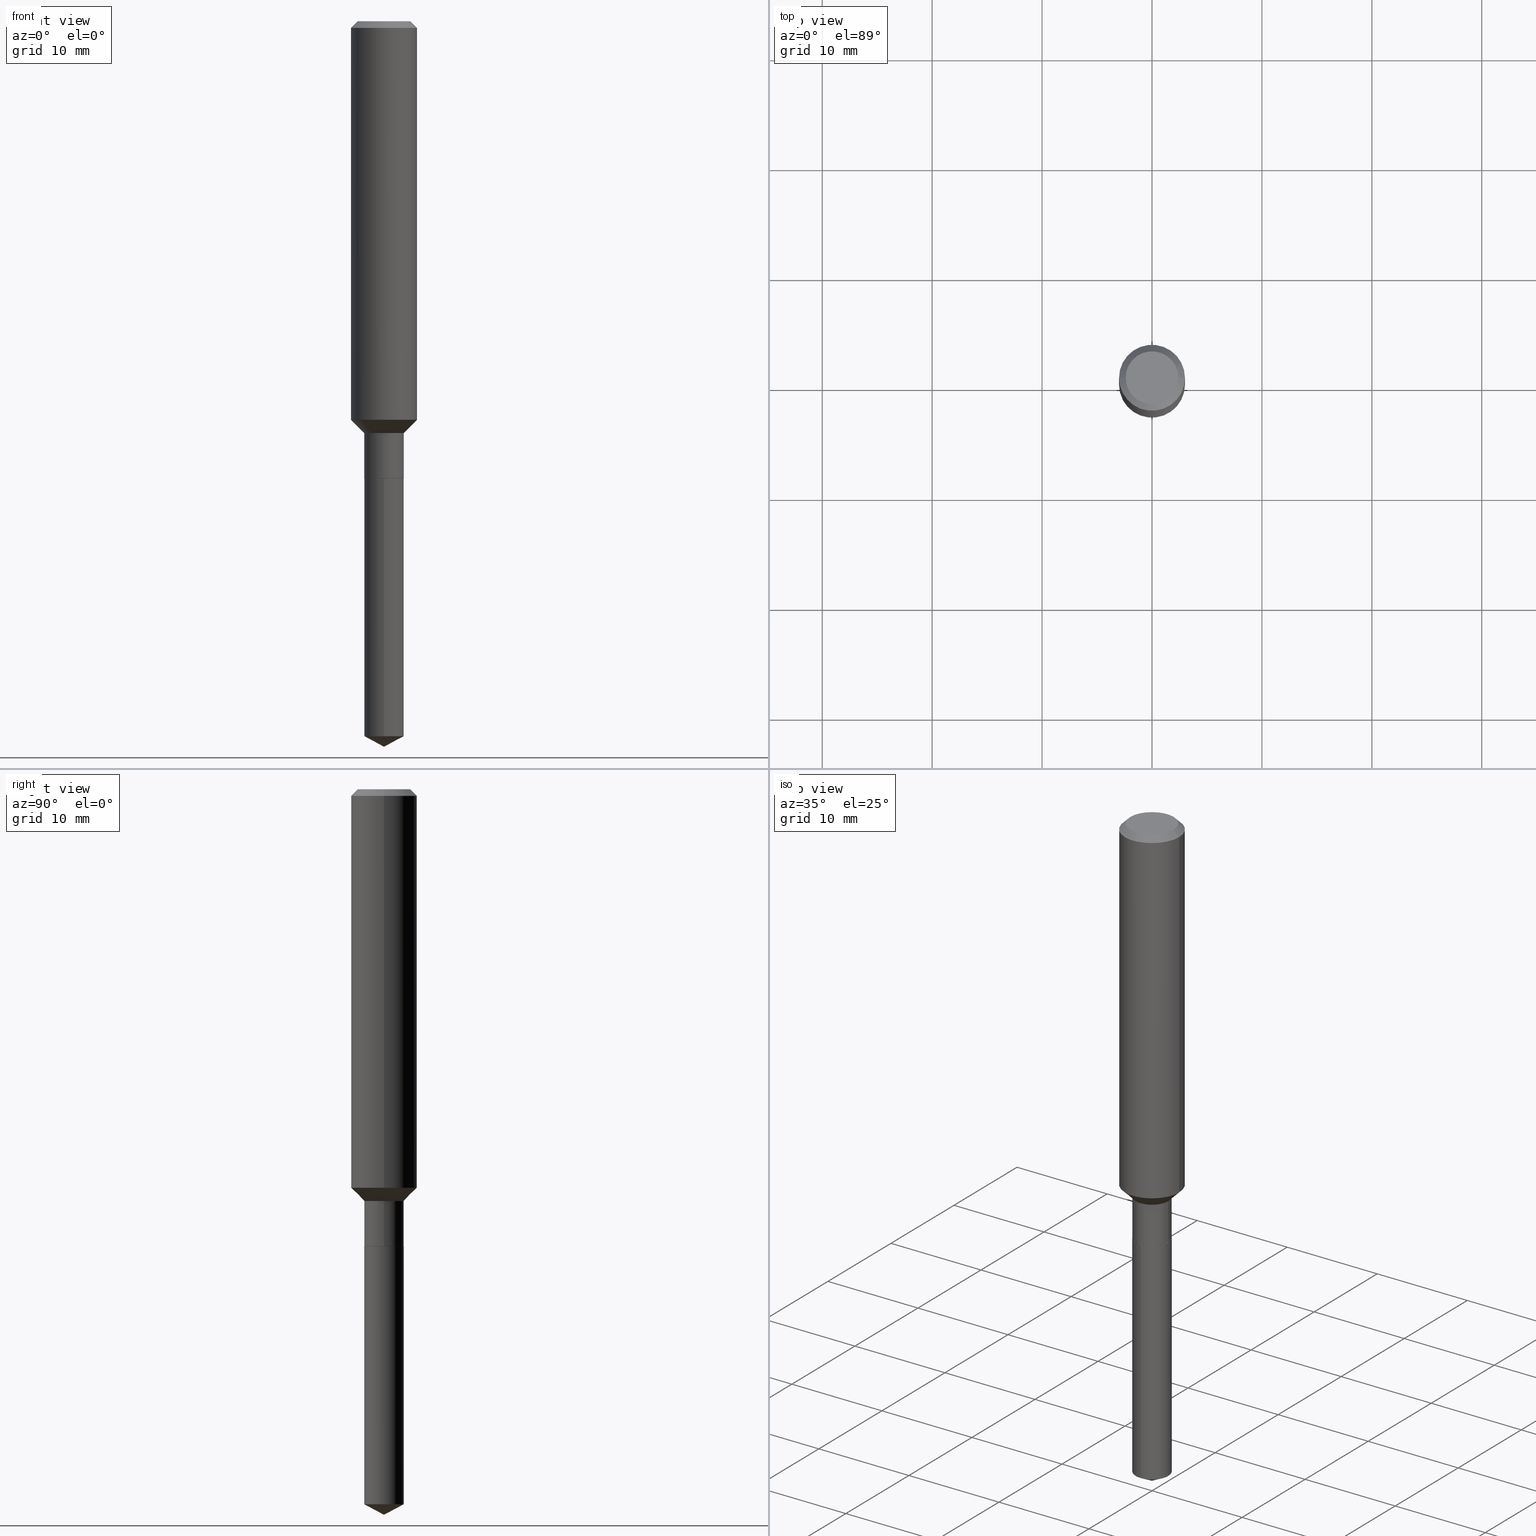
[diagram: canonical four-view strip — front | top / right | iso, engineering-drawing reading convention]
A machine part, canonical four-view strip (front | top / right | iso — engineering-drawing reading convention). The complete STEP part file that produces these views, byte-faithful:
ISO-10303-21;
HEADER;
FILE_DESCRIPTION (( 'STEP AP203' ),
    '1' );
FILE_NAME ('65006.STEP',
    '2024-04-24T19:44:00',
    ( '' ),
    ( '' ),
    'SwSTEP 2.0',
    'SolidWorks 2023',
    '' );
FILE_SCHEMA (( 'CONFIG_CONTROL_DESIGN' ));
ENDSEC;

DATA;
#1 = CARTESIAN_POINT ( 'NONE',  ( 0.07084999999999998244, -5.643630436106058407E-15, -1.474699999999999900 ) ) ;
#2 = ORIENTED_EDGE ( 'NONE', *, *, #333, .F. ) ;
#3 = ADVANCED_FACE ( 'NONE', ( #245 ), #367, .T. ) ;
#4 = AXIS2_PLACEMENT_3D ( 'NONE', #435, #437, #239 ) ;
#5 = CARTESIAN_POINT ( 'NONE',  ( 0.07084999999999998244, -6.210996153668069944E-15, -1.637199999999999989 ) ) ;
#6 = EDGE_CURVE ( 'NONE', #293, #358, #214, .T. ) ;
#7 = ORIENTED_EDGE ( 'NONE', *, *, #390, .T. ) ;
#8 = CC_DESIGN_PERSON_AND_ORGANIZATION_ASSIGNMENT ( #343, #21, ( #285 ) ) ;
#9 = CARTESIAN_POINT ( 'NONE',  ( 4.716267017698007905E-46, -6.733579360998555036E-32, -1.928573779297252010E-17 ) ) ;
#10 = CARTESIAN_POINT ( 'NONE',  ( -0.09447999999999998066, 7.009847083995354710E-16, -1.928573779297727792E-17 ) ) ;
#11 = ORIENTED_EDGE ( 'NONE', *, *, #255, .F. ) ;
#12 = VECTOR ( 'NONE', #304, 39.37007874015748143 ) ;
#13 = VECTOR ( 'NONE', #172, 39.37007874015748143 ) ;
#14 = CALENDAR_DATE ( 2024, 24, 4 ) ;
#15 = EDGE_CURVE ( 'NONE', #116, #370, #164, .T. ) ;
#16 = FACE_OUTER_BOUND ( 'NONE', #170, .T. ) ;
#17 = DIRECTION ( 'NONE',  ( 1.000000000000000000, 0.000000000000000000, 0.000000000000000000 ) ) ;
#18 = CARTESIAN_POINT ( 'NONE',  ( 0.000000000000000000, 0.000000000000000000, 0.000000000000000000 ) ) ;
#19 = PERSON_AND_ORGANIZATION ( #378, #317 ) ;
#20 = CARTESIAN_POINT ( 'NONE',  ( 4.004944263889397849E-29, -5.717998988623418403E-15, -1.637699999999999934 ) ) ;
#21 = PERSON_AND_ORGANIZATION_ROLE ( 'classification_officer' ) ;
#22 = AXIS2_PLACEMENT_3D ( 'NONE', #372, #46, #452 ) ;
#23 = CARTESIAN_POINT ( 'NONE',  ( 5.776197320209328408E-31, -8.246878922347560526E-17, -0.02362000000000014435 ) ) ;
#24 = DIRECTION ( 'NONE',  ( -6.982962677686266711E-15, -1.000000000000000000, 0.000000000000000000 ) ) ;
#25 = PRODUCT_RELATED_PRODUCT_CATEGORY ( 'detail', '', ( #267 ) ) ;
#26 = CARTESIAN_POINT ( 'NONE',  ( 0.000000000000000000, 0.000000000000000000, 0.000000000000000000 ) ) ;
#27 = DIRECTION ( 'NONE',  ( 1.000000000000000000, -6.982962677686270655E-15, 0.000000000000000000 ) ) ;
#28 = AXIS2_PLACEMENT_3D ( 'NONE', #132, #350, #272 ) ;
#29 = EDGE_LOOP ( 'NONE', ( #327, #377 ) ) ;
#30 = CARTESIAN_POINT ( 'NONE',  ( 0.07034999999999999587, -6.209250412998647651E-15, -1.637699999999999934 ) ) ;
#31 = CARTESIAN_POINT ( 'NONE',  ( 0.1180999999999999966, -8.926936027602933910E-16, -0.02362000000000014435 ) ) ;
#32 = ORIENTED_EDGE ( 'NONE', *, *, #351, .F. ) ;
#33 = CARTESIAN_POINT ( 'NONE',  ( -4.947429057140318261E-16, -0.07085000000000571396, -1.637699999999999489 ) ) ;
#34 = LOCAL_TIME ( 15, 44, 0.000000000000000000, #299 ) ;
#35 = EDGE_CURVE ( 'NONE', #373, #275, #216, .T. ) ;
#36 = DIRECTION ( 'NONE',  ( -2.445468806185136597E-29, 3.491481338843145583E-15, 1.000000000000000000 ) ) ;
#37 = EDGE_CURVE ( 'NONE', #253, #355, #335, .T. ) ;
#38 = CYLINDRICAL_SURFACE ( 'NONE', #337, 0.07084999999999999631 ) ;
#39 = PRODUCT_DEFINITION ( 'UNKNOWN', '', #459, #306 ) ;
#40 = CARTESIAN_POINT ( 'NONE',  ( 0.07034999999999999587, -6.209250412998647651E-15, -1.637699999999999934 ) ) ;
#41 = ADVANCED_FACE ( 'NONE', ( #298 ), #391, .F. ) ;
#42 = AXIS2_PLACEMENT_3D ( 'NONE', #482, #443, #399 ) ;
#43 = DIRECTION ( 'NONE',  ( 1.000000000000000000, -6.982962677686266711E-15, 0.000000000000000000 ) ) ;
#44 = ADVANCED_FACE ( 'NONE', ( #192 ), #396, .T. ) ;
#45 = EDGE_LOOP ( 'NONE', ( #488, #72, #218, #314 ) ) ;
#46 = DIRECTION ( 'NONE',  ( -2.445468806185136597E-29, 3.491481338843145583E-15, 1.000000000000000000 ) ) ;
#47 = ORIENTED_EDGE ( 'NONE', *, *, #359, .F. ) ;
#48 = APPROVAL_DATE_TIME ( #223, #439 ) ;
#49 = ORIENTED_EDGE ( 'NONE', *, *, #15, .F. ) ;
#50 = VECTOR ( 'NONE', #329, 39.37007874015748143 ) ;
#51 = COORDINATED_UNIVERSAL_TIME_OFFSET ( 5, 0, .BEHIND. ) ;
#52 = FACE_OUTER_BOUND ( 'NONE', #240, .T. ) ;
#53 = ADVANCED_FACE ( 'NONE', ( #386 ), #340, .T. ) ;
#54 = LINE ( 'NONE', #226, #441 ) ;
#55 = PERSON_AND_ORGANIZATION_ROLE ( 'design_supplier' ) ;
#56 = DIRECTION ( 'NONE',  ( -2.445468806185136597E-29, 3.491481338843145583E-15, 1.000000000000000000 ) ) ;
#57 = VECTOR ( 'NONE', #382, 39.37007874015748143 ) ;
#58 = CIRCLE ( 'NONE', #139, 0.09447999999999998066 ) ;
#59 = EDGE_CURVE ( 'NONE', #460, #275, #462, .T. ) ;
#60 = CYLINDRICAL_SURFACE ( 'NONE', #251, 0.07084999999999998244 ) ;
#61 = DIRECTION ( 'NONE',  ( -2.439491125561430535E-29, 3.500041717724744558E-15, 1.000000000000000000 ) ) ;
#62 = CARTESIAN_POINT ( 'NONE',  ( 3.606332848481220799E-29, -5.148887530391986941E-15, -1.474699999999999900 ) ) ;
#63 = EDGE_LOOP ( 'NONE', ( #416, #418, #2, #451 ) ) ;
#64 = CONICAL_SURFACE ( 'NONE', #129, 0.07034999999999999587, 0.7853981633975420928 ) ;
#65 = CARTESIAN_POINT ( 'NONE',  ( -0.1180999999999999966, 7.422191030112725094E-16, -0.02362000000000014435 ) ) ;
#66 = VERTEX_POINT ( 'NONE', #231 ) ;
#67 = FACE_OUTER_BOUND ( 'NONE', #29, .T. ) ;
#68 = FACE_OUTER_BOUND ( 'NONE', #287, .T. ) ;
#69 = CC_DESIGN_PERSON_AND_ORGANIZATION_ASSIGNMENT ( #19, #160, ( #39 ) ) ;
#70 = LENGTH_MEASURE_WITH_UNIT ( LENGTH_MEASURE( 0.02539999999999999897 ), #248 );
#71 = CONICAL_SURFACE ( 'NONE', #123, 0.1180999999999999966, 0.7853981633974459475 ) ;
#72 = ORIENTED_EDGE ( 'NONE', *, *, #447, .T. ) ;
#73 = ORIENTED_EDGE ( 'NONE', *, *, #310, .F. ) ;
#74 = DIRECTION ( 'NONE',  ( 1.000000000000000000, -6.982962677686265133E-15, 0.000000000000000000 ) ) ;
#75 = ORIENTED_EDGE ( 'NONE', *, *, #37, .F. ) ;
#76 = CARTESIAN_POINT ( 'NONE',  ( 4.004944263889397849E-29, -5.717998988623418403E-15, -1.637699999999999934 ) ) ;
#77 = DIRECTION ( 'NONE',  ( 1.000000000000000000, -6.982962677686266711E-15, 4.876176775795936353E-29 ) ) ;
#78 =( NAMED_UNIT ( * ) PLANE_ANGLE_UNIT ( ) SI_UNIT ( $, .RADIAN. ) );
#79 = ORIENTED_EDGE ( 'NONE', *, *, #393, .F. ) ;
#80 = CIRCLE ( 'NONE', #217, 0.07034999999999999587 ) ;
#81 = APPROVAL_PERSON_ORGANIZATION ( #252, #342, #124 ) ;
#82 = DIRECTION ( 'NONE',  ( -2.445468806185136597E-29, 3.491481338843145583E-15, 1.000000000000000000 ) ) ;
#83 = VERTEX_POINT ( 'NONE', #472 ) ;
#84 = DATE_AND_TIME ( #385, #486 ) ;
#85 = ORIENTED_EDGE ( 'NONE', *, *, #481, .F. ) ;
#86 = PERSON_AND_ORGANIZATION ( #378, #317 ) ;
#87 = DIRECTION ( 'NONE',  ( -2.445468806185136597E-29, 3.491481338843145583E-15, 1.000000000000000000 ) ) ;
#88 = CIRCLE ( 'NONE', #22, 0.1181000000000001632 ) ;
#89 = PERSON_AND_ORGANIZATION_ROLE ( 'design_owner' ) ;
#90 = DIRECTION ( 'NONE',  ( -6.982962677686266711E-15, -1.000000000000000000, 0.000000000000000000 ) ) ;
#91 = ADVANCED_FACE ( 'NONE', ( #16 ), #64, .T. ) ;
#92 = PERSON_AND_ORGANIZATION_ROLE ( 'creator' ) ;
#93 = DIRECTION ( 'NONE',  ( -0.7071067811866138531, 7.493145998870593974E-15, 0.7071067811864811814 ) ) ;
#94 = EDGE_CURVE ( 'NONE', #66, #185, #276, .T. ) ;
#95 = MANIFOLD_SOLID_BREP ( 'Body-Move/Copy2[1]', #182 ) ;
#96 = CARTESIAN_POINT ( 'NONE',  ( -0.07034999999999999587, -5.215482946842077343E-15, -1.637699999999999934 ) ) ;
#97 = AXIS2_PLACEMENT_3D ( 'NONE', #345, #228, #263 ) ;
#98 = AXIS2_PLACEMENT_3D ( 'NONE', #23, #56, #159 ) ;
#99 = AXIS2_PLACEMENT_3D ( 'NONE', #483, #278, #27 ) ;
#100 = DIRECTION ( 'NONE',  ( -1.000000000000000000, 6.982962677686266711E-15, 0.000000000000000000 ) ) ;
#101 = CARTESIAN_POINT ( 'NONE',  ( 0.1181000000000001632, -5.808602929366397200E-15, -1.427449999999999886 ) ) ;
#102 = ORIENTED_EDGE ( 'NONE', *, *, #326, .F. ) ;
#103 = EDGE_CURVE ( 'NONE', #358, #370, #174, .T. ) ;
#104 = LINE ( 'NONE', #281, #13 ) ;
#105 = CARTESIAN_POINT ( 'NONE',  ( 4.003721529486305608E-29, -5.716253247953998478E-15, -1.637199999999999989 ) ) ;
#106 = DIRECTION ( 'NONE',  ( -6.982962677686265133E-15, -1.000000000000000000, 3.855819327684210983E-15 ) ) ;
#107 = ORIENTED_EDGE ( 'NONE', *, *, #15, .T. ) ;
#108 = CARTESIAN_POINT ( 'NONE',  ( 4.004944263889397849E-29, -5.717998988623418403E-15, -1.637699999999999934 ) ) ;
#109 = DIRECTION ( 'NONE',  ( -2.445468806185136597E-29, 3.491481338843145583E-15, 1.000000000000000000 ) ) ;
#110 = AXIS2_PLACEMENT_3D ( 'NONE', #207, #318, #43 ) ;
#111 = ORIENTED_EDGE ( 'NONE', *, *, #323, .T. ) ;
#112 = DIRECTION ( 'NONE',  ( -2.445468806185136597E-29, 3.491481338843145583E-15, 1.000000000000000000 ) ) ;
#113 = ORIENTED_EDGE ( 'NONE', *, *, #131, .F. ) ;
#114 = DIRECTION ( 'NONE',  ( 6.273719981627788953E-15, 0.8829475928589329836, 0.4694715627858795370 ) ) ;
#115 = DIRECTION ( 'NONE',  ( 1.000000000000000000, -6.982962677686269866E-15, 0.000000000000000000 ) ) ;
#116 = VERTEX_POINT ( 'NONE', #96 ) ;
#117 = LOCAL_TIME ( 15, 44, 0.000000000000000000, #295 ) ;
#118 = CARTESIAN_POINT ( 'NONE',  ( 4.004944263889397849E-29, -5.717998988623418403E-15, -1.637699999999999934 ) ) ;
#119 = PERSON_AND_ORGANIZATION ( #378, #317 ) ;
#120 = DIRECTION ( 'NONE',  ( -2.445468806185136597E-29, 3.491481338843145583E-15, 1.000000000000000000 ) ) ;
#121 = SECURITY_CLASSIFICATION_LEVEL ( 'unclassified' ) ;
#122 = DIRECTION ( 'NONE',  ( -6.982962677686265133E-15, -1.000000000000000000, 3.541896320645499732E-15 ) ) ;
#123 = AXIS2_PLACEMENT_3D ( 'NONE', #181, #246, #369 ) ;
#124 = APPROVAL_ROLE ( '' ) ;
#125 = CARTESIAN_POINT ( 'NONE',  ( 4.003721529486305608E-29, -5.716253247953998478E-15, -1.637199999999999989 ) ) ;
#126 = CALENDAR_DATE ( 2024, 24, 4 ) ;
#127 = CARTESIAN_POINT ( 'NONE',  ( 4.004944263889397849E-29, -5.717998988623418403E-15, -1.637699999999999934 ) ) ;
#128 = CYLINDRICAL_SURFACE ( 'NONE', #203, 0.07084999999999999631 ) ;
#129 = AXIS2_PLACEMENT_3D ( 'NONE', #127, #300, #261 ) ;
#130 = CIRCLE ( 'NONE', #225, 0.07084999999999999631 ) ;
#131 = EDGE_CURVE ( 'NONE', #361, #185, #54, .T. ) ;
#132 = CARTESIAN_POINT ( 'NONE',  ( 4.716267017698007905E-46, -6.733579360998555036E-32, -1.928573779297252010E-17 ) ) ;
#133 = EDGE_LOOP ( 'NONE', ( #273, #201, #180, #249 ) ) ;
#134 = LINE ( 'NONE', #444, #308 ) ;
#135 = EDGE_LOOP ( 'NONE', ( #85, #438, #344 ) ) ;
#136 = ADVANCED_FACE ( 'NONE', ( #341 ), #346, .T. ) ;
#137 = DIRECTION ( 'NONE',  ( 1.000000000000000000, -6.982962677686265133E-15, 0.000000000000000000 ) ) ;
#138 = PLANE ( 'NONE',  #42 ) ;
#139 = AXIS2_PLACEMENT_3D ( 'NONE', #9, #82, #153 ) ;
#140 = DIRECTION ( 'NONE',  ( -2.445468806185136597E-29, 3.491481338843145583E-15, 1.000000000000000000 ) ) ;
#141 = CARTESIAN_POINT ( 'NONE',  ( 3.606332848481220799E-29, -5.148887530391986941E-15, -1.474699999999999900 ) ) ;
#142 = ORIENTED_EDGE ( 'NONE', *, *, #212, .T. ) ;
#143 = ADVANCED_FACE ( 'NONE', ( #268 ), #476, .T. ) ;
#144 = EDGE_LOOP ( 'NONE', ( #73, #154 ) ) ;
#145 = ORIENTED_EDGE ( 'NONE', *, *, #59, .F. ) ;
#146 = FACE_OUTER_BOUND ( 'NONE', #368, .T. ) ;
#147 = VECTOR ( 'NONE', #93, 39.37007874015748143 ) ;
#148 = CIRCLE ( 'NONE', #4, 0.07034999999999999587 ) ;
#149 = ORIENTED_EDGE ( 'NONE', *, *, #359, .T. ) ;
#150 = LINE ( 'NONE', #332, #468 ) ;
#151 = EDGE_CURVE ( 'NONE', #185, #66, #195, .T. ) ;
#152 = DIRECTION ( 'NONE',  ( 0.7071067811866138531, -2.468850131082952047E-15, 0.7071067811864811814 ) ) ;
#153 = DIRECTION ( 'NONE',  ( 1.000000000000000000, -6.982962677686267499E-15, 4.875432709231658792E-29 ) ) ;
#154 = ORIENTED_EDGE ( 'NONE', *, *, #375, .F. ) ;
#155 = VECTOR ( 'NONE', #169, 39.37007874015748143 ) ;
#156 = APPROVAL_PERSON_ORGANIZATION ( #470, #400, #419 ) ;
#157 = DATE_AND_TIME ( #163, #449 ) ;
#158 = DIRECTION ( 'NONE',  ( -2.439491125561430535E-29, 3.500041717724744558E-15, 1.000000000000000000 ) ) ;
#159 = DIRECTION ( 'NONE',  ( 1.000000000000000000, -6.982962677686266711E-15, 0.000000000000000000 ) ) ;
#160 = PERSON_AND_ORGANIZATION_ROLE ( 'creator' ) ;
#161 = CARTESIAN_POINT ( 'NONE',  ( 5.776197320209328408E-31, -8.246878922347560526E-17, -0.02362000000000014435 ) ) ;
#162 = CONICAL_SURFACE ( 'NONE', #388, 0.07084999999999998244, 0.7853981633974487231 ) ;
#163 = CALENDAR_DATE ( 2024, 24, 4 ) ;
#164 = LINE ( 'NONE', #469, #147 ) ;
#165 = LINE ( 'NONE', #305, #57 ) ;
#166 = DIRECTION ( 'NONE',  ( 1.000000000000000000, -6.982962677686266711E-15, 4.876176775795935232E-29 ) ) ;
#167 = EDGE_LOOP ( 'NONE', ( #236, #149, #75, #283 ) ) ;
#168 = AXIS2_PLACEMENT_3D ( 'NONE', #401, #362, #204 ) ;
#169 = DIRECTION ( 'NONE',  ( 0.7071067811865459074, -7.319954787623251312E-15, -0.7071067811865492381 ) ) ;
#170 = EDGE_LOOP ( 'NONE', ( #297, #107, #480, #242 ) ) ;
#171 = ADVANCED_FACE ( 'NONE', ( #387 ), #60, .T. ) ;
#172 = DIRECTION ( 'NONE',  ( 0.7071067811865477948, -2.468850131082259822E-15, 0.7071067811865472397 ) ) ;
#173 = CARTESIAN_POINT ( 'NONE',  ( 3.606332848481220799E-29, -5.148887530391986941E-15, -1.474699999999999900 ) ) ;
#174 = CIRCLE ( 'NONE', #456, 0.07084999999999998244 ) ;
#175 = LINE ( 'NONE', #360, #324 ) ;
#176 = AXIS2_PLACEMENT_3D ( 'NONE', #339, #193, #17 ) ;
#177 =( NAMED_UNIT ( * ) SI_UNIT ( $, .STERADIAN. ) SOLID_ANGLE_UNIT ( ) );
#178 = EDGE_CURVE ( 'NONE', #358, #379, #165, .T. ) ;
#179 = CARTESIAN_POINT ( 'NONE',  ( 6.338773740658819888E-29, -9.094508399335977746E-15, -2.598399999999999821 ) ) ;
#180 = ORIENTED_EDGE ( 'NONE', *, *, #178, .T. ) ;
#181 = CARTESIAN_POINT ( 'NONE',  ( 5.776197320209328408E-31, -8.246878922347560526E-17, -0.02362000000000014435 ) ) ;
#182 = CLOSED_SHELL ( 'NONE', ( #464, #44, #136, #186, #473 ) ) ;
#183 = FACE_OUTER_BOUND ( 'NONE', #319, .T. ) ;
#184 = PLANE ( 'NONE',  #478 ) ;
#185 = VERTEX_POINT ( 'NONE', #474 ) ;
#186 = ADVANCED_FACE ( 'NONE', ( #52 ), #128, .T. ) ;
#187 = MECHANICAL_CONTEXT ( 'NONE', #303, 'mechanical' ) ;
#188 = DIRECTION ( 'NONE',  ( -6.982962677686265133E-15, -1.000000000000000000, 3.541896320645499732E-15 ) ) ;
#189 = AXIS2_PLACEMENT_3D ( 'NONE', #26, #270, #166 ) ;
#190 = DIRECTION ( 'NONE',  ( 1.000000000000000000, -6.982962677686265922E-15, 4.876176775795935793E-29 ) ) ;
#191 = APPROVAL_ROLE ( '' ) ;
#192 = FACE_OUTER_BOUND ( 'NONE', #208, .T. ) ;
#193 = DIRECTION ( 'NONE',  ( 0.000000000000000000, 0.000000000000000000, 1.000000000000000000 ) ) ;
#194 = DIRECTION ( 'NONE',  ( -2.438088387897960049E-29, 3.491481338843145188E-15, 1.000000000000000000 ) ) ;
#195 = CIRCLE ( 'NONE', #202, 0.07084999999999999631 ) ;
#196 = CARTESIAN_POINT ( 'NONE',  ( 0.000000000000000000, 0.000000000000000000, 0.000000000000000000 ) ) ;
#197 = EDGE_CURVE ( 'NONE', #370, #358, #292, .T. ) ;
#198 = PRODUCT_DEFINITION_SHAPE ( 'NONE', 'NONE',  #39 ) ;
#199 = DIRECTION ( 'NONE',  ( -2.439491125561430535E-29, 3.500041717724744558E-15, 1.000000000000000000 ) ) ;
#200 = FACE_OUTER_BOUND ( 'NONE', #45, .T. ) ;
#201 = ORIENTED_EDGE ( 'NONE', *, *, #197, .T. ) ;
#202 = AXIS2_PLACEMENT_3D ( 'NONE', #338, #429, #24 ) ;
#203 = AXIS2_PLACEMENT_3D ( 'NONE', #108, #479, #106 ) ;
#204 = DIRECTION ( 'NONE',  ( 1.000000000000000000, -6.982962677686265133E-15, 0.000000000000000000 ) ) ;
#205 = ORIENTED_EDGE ( 'NONE', *, *, #375, .T. ) ;
#206 = LINE ( 'NONE', #241, #269 ) ;
#207 = CARTESIAN_POINT ( 'NONE',  ( 5.776197320209328408E-31, -8.246878922347560526E-17, -0.02362000000000014435 ) ) ;
#208 = EDGE_LOOP ( 'NONE', ( #113, #222, #376 ) ) ;
#209 = LOCAL_TIME ( 15, 44, 0.000000000000000000, #51 ) ;
#210 =( CONVERSION_BASED_UNIT ( 'INCH', #70 ) LENGTH_UNIT ( ) NAMED_UNIT ( #409 ) );
#211 = ORIENTED_EDGE ( 'NONE', *, *, #258, .F. ) ;
#212 = EDGE_CURVE ( 'NONE', #355, #253, #130, .T. ) ;
#213 = DIRECTION ( 'NONE',  ( 6.982962677686265922E-15, 1.000000000000000000, -3.500041717724744558E-15 ) ) ;
#214 = LINE ( 'NONE', #40, #291 ) ;
#215 = CARTESIAN_POINT ( 'NONE',  ( 4.004944263889397849E-29, -5.717998988623418403E-15, -1.637699999999999934 ) ) ;
#216 = CIRCLE ( 'NONE', #98, 0.1180999999999999966 ) ;
#217 = AXIS2_PLACEMENT_3D ( 'NONE', #405, #374, #282 ) ;
#218 = ORIENTED_EDGE ( 'NONE', *, *, #331, .F. ) ;
#219 = DIRECTION ( 'NONE',  ( -6.982962677686265133E-15, -1.000000000000000000, 3.855819327684210983E-15 ) ) ;
#220 = ORIENTED_EDGE ( 'NONE', *, *, #351, .T. ) ;
#221 = APPROVAL_STATUS ( 'not_yet_approved' ) ;
#222 = ORIENTED_EDGE ( 'NONE', *, *, #481, .T. ) ;
#223 = DATE_AND_TIME ( #336, #209 ) ;
#224 = DIRECTION ( 'NONE',  ( 1.000000000000000000, -6.982962677686266711E-15, 4.876176775795936353E-29 ) ) ;
#225 = AXIS2_PLACEMENT_3D ( 'NONE', #477, #61, #311 ) ;
#226 = CARTESIAN_POINT ( 'NONE',  ( 6.338773740658819888E-29, -9.094508399335977746E-15, -2.598399999999999821 ) ) ;
#227 = APPLICATION_PROTOCOL_DEFINITION ( 'international standard', 'config_control_design', 1994, #303 ) ;
#228 = DIRECTION ( 'NONE',  ( -2.439491125561430535E-29, 3.500041717724744558E-15, 1.000000000000000000 ) ) ;
#229 = CARTESIAN_POINT ( 'NONE',  ( -8.969439431105265789E-28, 1.287164289538176706E-13, 36.77167874015748339 ) ) ;
#230 = CC_DESIGN_APPROVAL ( #439, ( #39 ) ) ;
#231 = CARTESIAN_POINT ( 'NONE',  ( 5.034195282860934727E-16, 0.07084999999999105902, -2.560728386766784936 ) ) ;
#232 = LINE ( 'NONE', #31, #155 ) ;
#233 = EDGE_CURVE ( 'NONE', #379, #320, #104, .T. ) ;
#234 = ORIENTED_EDGE ( 'NONE', *, *, #390, .F. ) ;
#235 = FACE_OUTER_BOUND ( 'NONE', #63, .T. ) ;
#236 = ORIENTED_EDGE ( 'NONE', *, *, #151, .T. ) ;
#237 = AXIS2_PLACEMENT_3D ( 'NONE', #408, #36, #77 ) ;
#238 = DIRECTION ( 'NONE',  ( -0.7071067811865459074, 2.468850131082239706E-15, -0.7071067811865492381 ) ) ;
#239 = DIRECTION ( 'NONE',  ( 1.000000000000000000, -6.982962677686269866E-15, 0.000000000000000000 ) ) ;
#240 = EDGE_LOOP ( 'NONE', ( #47, #398, #485, #316 ) ) ;
#241 = CARTESIAN_POINT ( 'NONE',  ( -4.947429057140318261E-16, -0.07085000000000571396, -1.637699999999999489 ) ) ;
#242 = ORIENTED_EDGE ( 'NONE', *, *, #6, .F. ) ;
#243 = AXIS2_PLACEMENT_3D ( 'NONE', #161, #266, #100 ) ;
#244 = CC_DESIGN_SECURITY_CLASSIFICATION ( #285, ( #459 ) ) ;
#245 = FACE_OUTER_BOUND ( 'NONE', #406, .T. ) ;
#246 = DIRECTION ( 'NONE',  ( 2.445468806185136597E-29, -3.491481338843145583E-15, -1.000000000000000000 ) ) ;
#247 = ORIENTED_EDGE ( 'NONE', *, *, #197, .F. ) ;
#248 =( LENGTH_UNIT ( ) NAMED_UNIT ( * ) SI_UNIT ( $, .METRE. ) );
#249 = ORIENTED_EDGE ( 'NONE', *, *, #363, .F. ) ;
#250 = DIRECTION ( 'NONE',  ( -2.445468806185136877E-29, 3.491481338843145188E-15, 1.000000000000000000 ) ) ;
#251 = AXIS2_PLACEMENT_3D ( 'NONE', #196, #120, #348 ) ;
#252 = PERSON_AND_ORGANIZATION ( #378, #317 ) ;
#253 = VERTEX_POINT ( 'NONE', #33 ) ;
#254 = EDGE_CURVE ( 'NONE', #185, #253, #206, .T. ) ;
#255 = EDGE_CURVE ( 'NONE', #330, #460, #134, .T. ) ;
#256 = APPROVAL_STATUS ( 'not_yet_approved' ) ;
#257 = DIRECTION ( 'NONE',  ( -2.439491125561430535E-29, 3.500041717724744558E-15, 1.000000000000000000 ) ) ;
#258 = EDGE_CURVE ( 'NONE', #490, #83, #404, .T. ) ;
#259 = CC_DESIGN_DATE_AND_TIME_ASSIGNMENT ( #157, #302, ( #285 ) ) ;
#260 = DATE_TIME_ROLE ( 'creation_date' ) ;
#261 = DIRECTION ( 'NONE',  ( 1.000000000000000000, -6.982962677686269866E-15, 0.000000000000000000 ) ) ;
#262 = COORDINATED_UNIVERSAL_TIME_OFFSET ( 5, 0, .BEHIND. ) ;
#263 = DIRECTION ( 'NONE',  ( -6.982962677686265133E-15, -1.000000000000000000, 3.855819327684210983E-15 ) ) ;
#264 = COORDINATED_UNIVERSAL_TIME_OFFSET ( 5, 0, .BEHIND. ) ;
#265 = CC_DESIGN_PERSON_AND_ORGANIZATION_ASSIGNMENT ( #463, #89, ( #267 ) ) ;
#266 = DIRECTION ( 'NONE',  ( 2.445468806185136597E-29, -3.491481338843145583E-15, -1.000000000000000000 ) ) ;
#267 = PRODUCT ( '65006', '65006', '', ( #187 ) ) ;
#268 = FACE_OUTER_BOUND ( 'NONE', #312, .T. ) ;
#269 = VECTOR ( 'NONE', #199, 39.37007874015748143 ) ;
#270 = DIRECTION ( 'NONE',  ( -2.445468806185136597E-29, 3.491481338843145583E-15, 1.000000000000000000 ) ) ;
#271 = ORIENTED_EDGE ( 'NONE', *, *, #37, .T. ) ;
#272 = DIRECTION ( 'NONE',  ( 1.000000000000000000, -6.982962677686267499E-15, 4.875432709231658792E-29 ) ) ;
#273 = ORIENTED_EDGE ( 'NONE', *, *, #447, .F. ) ;
#274 = DIRECTION ( 'NONE',  ( -0.7071067811865477948, 7.493145998870355738E-15, 0.7071067811865472397 ) ) ;
#275 = VERTEX_POINT ( 'NONE', #440 ) ;
#276 = CIRCLE ( 'NONE', #402, 0.07084999999999999631 ) ;
#277 = AXIS2_PLACEMENT_3D ( 'NONE', #141, #112, #74 ) ;
#278 = DIRECTION ( 'NONE',  ( -2.445468806185136597E-29, 3.491481338843145583E-15, 1.000000000000000000 ) ) ;
#279 = ORIENTED_EDGE ( 'NONE', *, *, #233, .T. ) ;
#280 = ADVANCED_FACE ( 'NONE', ( #200 ), #315, .T. ) ;
#281 = CARTESIAN_POINT ( 'NONE',  ( 0.07084999999999998244, -5.643630436106058407E-15, -1.474699999999999900 ) ) ;
#282 = DIRECTION ( 'NONE',  ( 1.000000000000000000, -6.982962677686269866E-15, 0.000000000000000000 ) ) ;
#283 = ORIENTED_EDGE ( 'NONE', *, *, #254, .F. ) ;
#284 = CARTESIAN_POINT ( 'NONE',  ( -0.07084999999999998244, 5.034195282860308569E-16, -3.485065511445599567E-30 ) ) ;
#285 = SECURITY_CLASSIFICATION ( '', '', #121 ) ;
#286 = EDGE_CURVE ( 'NONE', #490, #275, #357, .T. ) ;
#287 = EDGE_LOOP ( 'NONE', ( #11, #294, #279, #234 ) ) ;
#288 = CARTESIAN_POINT ( 'NONE',  ( 0.1180999999999999966, -9.071566814582237199E-16, -0.02362000000000014435 ) ) ;
#289 = LINE ( 'NONE', #284, #457 ) ;
#290 = ORIENTED_EDGE ( 'NONE', *, *, #326, .T. ) ;
#291 = VECTOR ( 'NONE', #152, 39.37007874015748143 ) ;
#292 = CIRCLE ( 'NONE', #371, 0.07084999999999998244 ) ;
#293 = VERTEX_POINT ( 'NONE', #30 ) ;
#294 = ORIENTED_EDGE ( 'NONE', *, *, #363, .T. ) ;
#295 = COORDINATED_UNIVERSAL_TIME_OFFSET ( 5, 0, .BEHIND. ) ;
#296 = DIRECTION ( 'NONE',  ( -6.165590087286858117E-15, -0.8829475928589297640, 0.4694715627858856433 ) ) ;
#297 = ORIENTED_EDGE ( 'NONE', *, *, #310, .T. ) ;
#298 = FACE_OUTER_BOUND ( 'NONE', #144, .T. ) ;
#299 = COORDINATED_UNIVERSAL_TIME_OFFSET ( 5, 0, .BEHIND. ) ;
#300 = DIRECTION ( 'NONE',  ( -2.445468806185136597E-29, 3.491481338843145583E-15, 1.000000000000000000 ) ) ;
#301 = ADVANCED_FACE ( 'NONE', ( #68 ), #162, .T. ) ;
#302 = DATE_TIME_ROLE ( 'classification_date' ) ;
#303 = APPLICATION_CONTEXT ( 'configuration controlled 3d designs of mechanical parts and assemblies' ) ;
#304 = DIRECTION ( 'NONE',  ( -2.445468806185136877E-29, 3.491481338843145188E-15, 1.000000000000000000 ) ) ;
#305 = CARTESIAN_POINT ( 'NONE',  ( 0.07084999999999998244, -4.947429057140718608E-16, 3.454771245651419209E-30 ) ) ;
#306 = DESIGN_CONTEXT ( 'detailed design', #475, 'design' ) ;
#307 = DIRECTION ( 'NONE',  ( 1.000000000000000000, -6.982962677686265133E-15, 0.000000000000000000 ) ) ;
#308 = VECTOR ( 'NONE', #274, 39.37007874015748143 ) ;
#309 = ORIENTED_EDGE ( 'NONE', *, *, #323, .F. ) ;
#310 = EDGE_CURVE ( 'NONE', #293, #116, #148, .T. ) ;
#311 = DIRECTION ( 'NONE',  ( -6.982962677686265133E-15, -1.000000000000000000, 3.855819327684210983E-15 ) ) ;
#312 = EDGE_LOOP ( 'NONE', ( #79, #290, #453, #471 ) ) ;
#313 = DIRECTION ( 'NONE',  ( -2.445468806185136597E-29, 3.491481338843145583E-15, 1.000000000000000000 ) ) ;
#314 = ORIENTED_EDGE ( 'NONE', *, *, #178, .F. ) ;
#315 = CYLINDRICAL_SURFACE ( 'NONE', #189, 0.07084999999999998244 ) ;
#316 = ORIENTED_EDGE ( 'NONE', *, *, #212, .F. ) ;
#317 = ORGANIZATION ( 'UNSPECIFIED', 'UNSPECIFIED', '' ) ;
#318 = DIRECTION ( 'NONE',  ( -2.445468806185136597E-29, 3.491481338843145583E-15, 1.000000000000000000 ) ) ;
#319 = EDGE_LOOP ( 'NONE', ( #102, #211, #455, #220 ) ) ;
#320 = VERTEX_POINT ( 'NONE', #101 ) ;
#321 = ADVANCED_FACE ( 'NONE', ( #67 ), #138, .F. ) ;
#322 = LINE ( 'NONE', #411, #50 ) ;
#323 = EDGE_CURVE ( 'NONE', #320, #373, #175, .T. ) ;
#324 = VECTOR ( 'NONE', #395, 39.37007874015748143 ) ;
#325 = DIRECTION ( 'NONE',  ( -2.439491125561430535E-29, 3.500041717724744558E-15, 1.000000000000000000 ) ) ;
#326 = EDGE_CURVE ( 'NONE', #83, #373, #232, .T. ) ;
#327 = ORIENTED_EDGE ( 'NONE', *, *, #258, .T. ) ;
#328 = ORIENTED_EDGE ( 'NONE', *, *, #35, .F. ) ;
#329 = DIRECTION ( 'NONE',  ( -2.439491125561430535E-29, 3.500041717724744558E-15, 1.000000000000000000 ) ) ;
#330 = VERTEX_POINT ( 'NONE', #487 ) ;
#331 = EDGE_CURVE ( 'NONE', #379, #330, #347, .T. ) ;
#332 = CARTESIAN_POINT ( 'NONE',  ( 6.358524723080361193E-29, -9.066469734347187655E-15, -2.598399999999999821 ) ) ;
#333 = EDGE_CURVE ( 'NONE', #320, #460, #354, .T. ) ;
#334 = CC_DESIGN_DATE_AND_TIME_ASSIGNMENT ( #467, #260, ( #39 ) ) ;
#335 = CIRCLE ( 'NONE', #97, 0.07084999999999999631 ) ;
#336 = CALENDAR_DATE ( 2024, 24, 4 ) ;
#337 = AXIS2_PLACEMENT_3D ( 'NONE', #118, #325, #219 ) ;
#338 = CARTESIAN_POINT ( 'NONE',  ( 6.256663822048253662E-29, -8.948636848951337196E-15, -2.560728386766784936 ) ) ;
#339 = CARTESIAN_POINT ( 'NONE',  ( 0.000000000000000000, 0.000000000000000000, 0.000000000000000000 ) ) ;
#340 = CYLINDRICAL_SURFACE ( 'NONE', #466, 0.1181000000000000799 ) ;
#341 = FACE_OUTER_BOUND ( 'NONE', #135, .T. ) ;
#342 = APPROVAL ( #221, 'UNSPECIFIED' ) ;
#343 = PERSON_AND_ORGANIZATION ( #378, #317 ) ;
#344 = ORIENTED_EDGE ( 'NONE', *, *, #94, .F. ) ;
#345 = CARTESIAN_POINT ( 'NONE',  ( 4.004944263889397849E-29, -5.717998988623418403E-15, -1.637699999999999934 ) ) ;
#346 = CONICAL_SURFACE ( 'NONE', #413, 74.04434902938481855, 1.082104136236493597 ) ;
#347 = CIRCLE ( 'NONE', #442, 0.07084999999999998244 ) ;
#348 = DIRECTION ( 'NONE',  ( 1.000000000000000000, -6.982962677686266711E-15, 4.876176775795935232E-29 ) ) ;
#349 = ADVANCED_FACE ( 'NONE', ( #235 ), #365, .T. ) ;
#350 = DIRECTION ( 'NONE',  ( -2.445468806185136597E-29, 3.491481338843145583E-15, 1.000000000000000000 ) ) ;
#351 = EDGE_CURVE ( 'NONE', #275, #373, #424, .T. ) ;
#352 = CC_DESIGN_PERSON_AND_ORGANIZATION_ASSIGNMENT ( #119, #55, ( #459 ) ) ;
#353 = DIRECTION ( 'NONE',  ( 1.000000000000000000, -6.982962677686265133E-15, 0.000000000000000000 ) ) ;
#354 = CIRCLE ( 'NONE', #99, 0.1181000000000001632 ) ;
#355 = VERTEX_POINT ( 'NONE', #454 ) ;
#356 = ADVANCED_FACE ( 'NONE', ( #183 ), #71, .T. ) ;
#357 = LINE ( 'NONE', #65, #448 ) ;
#358 = VERTEX_POINT ( 'NONE', #5 ) ;
#359 = EDGE_CURVE ( 'NONE', #66, #355, #322, .T. ) ;
#360 = CARTESIAN_POINT ( 'NONE',  ( 0.1181000000000000799, -8.246878922347486570E-16, 5.758764772215004644E-30 ) ) ;
#361 = VERTEX_POINT ( 'NONE', #179 ) ;
#362 = DIRECTION ( 'NONE',  ( -2.445468806185136597E-29, 3.491481338843145583E-15, 1.000000000000000000 ) ) ;
#363 = EDGE_CURVE ( 'NONE', #330, #379, #366, .T. ) ;
#364 = UNCERTAINTY_MEASURE_WITH_UNIT (LENGTH_MEASURE( 1.000000000000000082E-05 ), #210, 'distance_accuracy_value', 'NONE');
#365 = CONICAL_SURFACE ( 'NONE', #168, 0.07084999999999998244, 0.7853981633974487231 ) ;
#366 = CIRCLE ( 'NONE', #277, 0.07084999999999998244 ) ;
#367 = CYLINDRICAL_SURFACE ( 'NONE', #237, 0.1181000000000000799 ) ;
#368 = EDGE_LOOP ( 'NONE', ( #49, #205, #394, #247 ) ) ;
#369 = DIRECTION ( 'NONE',  ( -1.000000000000000000, 6.982962677686266711E-15, 0.000000000000000000 ) ) ;
#370 = VERTEX_POINT ( 'NONE', #445 ) ;
#371 = AXIS2_PLACEMENT_3D ( 'NONE', #105, #313, #137 ) ;
#372 = CARTESIAN_POINT ( 'NONE',  ( 3.490784447388972920E-29, -4.983915037131647359E-15, -1.427449999999999886 ) ) ;
#373 = VERTEX_POINT ( 'NONE', #288 ) ;
#374 = DIRECTION ( 'NONE',  ( -2.445468806185136597E-29, 3.491481338843145583E-15, 1.000000000000000000 ) ) ;
#375 = EDGE_CURVE ( 'NONE', #116, #293, #80, .T. ) ;
#376 = ORIENTED_EDGE ( 'NONE', *, *, #151, .F. ) ;
#377 = ORIENTED_EDGE ( 'NONE', *, *, #393, .T. ) ;
#378 = PERSON ( 'UNSPECIFIED', 'UNSPECIFIED', 'UNSPECIFIED', ('UNSPECIFIED'), ('UNSPECIFIED'), ('UNSPECIFIED') ) ;
#379 = VERTEX_POINT ( 'NONE', #1 ) ;
#380 = APPROVAL_STATUS ( 'not_yet_approved' ) ;
#381 =( GEOMETRIC_REPRESENTATION_CONTEXT ( 3 ) GLOBAL_UNCERTAINTY_ASSIGNED_CONTEXT ( ( #364 ) ) GLOBAL_UNIT_ASSIGNED_CONTEXT ( ( #210, #78, #177 ) ) REPRESENTATION_CONTEXT ( 'NONE', 'WORKASPACE' ) );
#382 = DIRECTION ( 'NONE',  ( -2.445468806185136877E-29, 3.491481338843145188E-15, 1.000000000000000000 ) ) ;
#383 = PERSON_AND_ORGANIZATION ( #378, #317 ) ;
#384 = CARTESIAN_POINT ( 'NONE',  ( -0.1181000000000000799, 8.391509709326788873E-16, -5.809262341591047988E-30 ) ) ;
#385 = CALENDAR_DATE ( 2024, 24, 4 ) ;
#386 = FACE_OUTER_BOUND ( 'NONE', #412, .T. ) ;
#387 = FACE_OUTER_BOUND ( 'NONE', #133, .T. ) ;
#388 = AXIS2_PLACEMENT_3D ( 'NONE', #62, #140, #307 ) ;
#389 = CC_DESIGN_APPROVAL ( #400, ( #285 ) ) ;
#390 = EDGE_CURVE ( 'NONE', #460, #320, #88, .T. ) ;
#391 = PLANE ( 'NONE',  #484 ) ;
#392 = DIRECTION ( 'NONE',  ( -2.445468806185136597E-29, 3.491481338843145583E-15, 1.000000000000000000 ) ) ;
#393 = EDGE_CURVE ( 'NONE', #83, #490, #58, .T. ) ;
#394 = ORIENTED_EDGE ( 'NONE', *, *, #6, .T. ) ;
#395 = DIRECTION ( 'NONE',  ( -2.445468806185136877E-29, 3.491481338843145188E-15, 1.000000000000000000 ) ) ;
#396 = CONICAL_SURFACE ( 'NONE', #422, 74.04434902938481855, 1.082104136236493597 ) ;
#397 = CONICAL_SURFACE ( 'NONE', #414, 0.07034999999999999587, 0.7853981633975420928 ) ;
#398 = ORIENTED_EDGE ( 'NONE', *, *, #94, .T. ) ;
#399 = DIRECTION ( 'NONE',  ( -1.000000000000000000, 6.982962677686265922E-15, -4.876176775795935793E-29 ) ) ;
#400 = APPROVAL ( #256, 'UNSPECIFIED' ) ;
#401 = CARTESIAN_POINT ( 'NONE',  ( 3.606332848481220799E-29, -5.148887530391986941E-15, -1.474699999999999900 ) ) ;
#402 = AXIS2_PLACEMENT_3D ( 'NONE', #425, #257, #90 ) ;
#403 = EDGE_LOOP ( 'NONE', ( #271, #142 ) ) ;
#404 = CIRCLE ( 'NONE', #28, 0.09447999999999998066 ) ;
#405 = CARTESIAN_POINT ( 'NONE',  ( 4.004944263889397849E-29, -5.717998988623418403E-15, -1.637699999999999934 ) ) ;
#406 = EDGE_LOOP ( 'NONE', ( #436, #446, #328, #309 ) ) ;
#407 = CARTESIAN_POINT ( 'NONE',  ( -0.1181000000000001632, -4.144764066198967584E-15, -1.427449999999999886 ) ) ;
#408 = CARTESIAN_POINT ( 'NONE',  ( 0.000000000000000000, 0.000000000000000000, 0.000000000000000000 ) ) ;
#409 = DIMENSIONAL_EXPONENTS ( 1.000000000000000000, 0.000000000000000000, 0.000000000000000000, 0.000000000000000000, 0.000000000000000000, 0.000000000000000000, 0.000000000000000000 ) ;
#410 = MANIFOLD_SOLID_BREP ( 'Body-Move/Copy2[2]', #430 ) ;
#411 = CARTESIAN_POINT ( 'NONE',  ( 5.034195282860708916E-16, 0.07084999999999427867, -1.637700000000000156 ) ) ;
#412 = EDGE_LOOP ( 'NONE', ( #145, #7, #111, #32 ) ) ;
#413 = AXIS2_PLACEMENT_3D ( 'NONE', #229, #158, #188 ) ;
#414 = AXIS2_PLACEMENT_3D ( 'NONE', #215, #109, #115 ) ;
#415 = FACE_OUTER_BOUND ( 'NONE', #403, .T. ) ;
#416 = ORIENTED_EDGE ( 'NONE', *, *, #331, .T. ) ;
#417 = SHAPE_DEFINITION_REPRESENTATION ( #198, #421 ) ;
#418 = ORIENTED_EDGE ( 'NONE', *, *, #255, .T. ) ;
#419 = APPROVAL_ROLE ( '' ) ;
#420 = CARTESIAN_POINT ( 'NONE',  ( -8.969439431105265789E-28, 1.287164289538176706E-13, 36.77167874015748339 ) ) ;
#421 = ADVANCED_BREP_SHAPE_REPRESENTATION ( '65006', ( #95, #410, #176 ), #381 ) ;
#422 = AXIS2_PLACEMENT_3D ( 'NONE', #420, #427, #122 ) ;
#423 = APPROVAL_DATE_TIME ( #428, #400 ) ;
#424 = CIRCLE ( 'NONE', #110, 0.1180999999999999966 ) ;
#425 = CARTESIAN_POINT ( 'NONE',  ( 6.256663822048253662E-29, -8.948636848951337196E-15, -2.560728386766784936 ) ) ;
#426 = APPROVAL_DATE_TIME ( #84, #342 ) ;
#427 = DIRECTION ( 'NONE',  ( -2.439491125561430535E-29, 3.500041717724744558E-15, 1.000000000000000000 ) ) ;
#428 = DATE_AND_TIME ( #126, #117 ) ;
#429 = DIRECTION ( 'NONE',  ( -2.439491125561430535E-29, 3.500041717724744558E-15, 1.000000000000000000 ) ) ;
#430 = CLOSED_SHELL ( 'NONE', ( #91, #143, #3, #349, #280, #171, #301, #53, #356, #321, #41, #431 ) ) ;
#431 = ADVANCED_FACE ( 'NONE', ( #146 ), #397, .T. ) ;
#432 = DIRECTION ( 'NONE',  ( 1.000000000000000000, -6.982962677686265133E-15, 0.000000000000000000 ) ) ;
#433 = APPROVAL_PERSON_ORGANIZATION ( #383, #439, #191 ) ;
#434 = CC_DESIGN_APPROVAL ( #342, ( #459 ) ) ;
#435 = CARTESIAN_POINT ( 'NONE',  ( 4.004944263889397849E-29, -5.717998988623418403E-15, -1.637699999999999934 ) ) ;
#436 = ORIENTED_EDGE ( 'NONE', *, *, #333, .T. ) ;
#437 = DIRECTION ( 'NONE',  ( -2.445468806185136597E-29, 3.491481338843145583E-15, 1.000000000000000000 ) ) ;
#438 = ORIENTED_EDGE ( 'NONE', *, *, #131, .T. ) ;
#439 = APPROVAL ( #380, 'UNSPECIFIED' ) ;
#440 = CARTESIAN_POINT ( 'NONE',  ( -0.1180999999999999966, -1.694040942244882028E-15, -0.02362000000000014435 ) ) ;
#441 = VECTOR ( 'NONE', #296, 39.37007874015748143 ) ;
#442 = AXIS2_PLACEMENT_3D ( 'NONE', #173, #392, #353 ) ;
#443 = DIRECTION ( 'NONE',  ( 2.438088387897960049E-29, -3.491481338843145188E-15, -1.000000000000000000 ) ) ;
#444 = CARTESIAN_POINT ( 'NONE',  ( -0.07084999999999998244, -4.645468002105956182E-15, -1.474699999999999900 ) ) ;
#445 = CARTESIAN_POINT ( 'NONE',  ( -0.07084999999999999631, -4.929150860886961951E-15, -1.637199999999999989 ) ) ;
#446 = ORIENTED_EDGE ( 'NONE', *, *, #59, .T. ) ;
#447 = EDGE_CURVE ( 'NONE', #370, #330, #289, .T. ) ;
#448 = VECTOR ( 'NONE', #238, 39.37007874015748143 ) ;
#449 = LOCAL_TIME ( 15, 44, 0.000000000000000000, #264 ) ;
#450 = FACE_OUTER_BOUND ( 'NONE', #167, .T. ) ;
#451 = ORIENTED_EDGE ( 'NONE', *, *, #233, .F. ) ;
#452 = DIRECTION ( 'NONE',  ( 1.000000000000000000, -6.982962677686270655E-15, 0.000000000000000000 ) ) ;
#453 = ORIENTED_EDGE ( 'NONE', *, *, #35, .T. ) ;
#454 = CARTESIAN_POINT ( 'NONE',  ( 5.034195282860936699E-16, 0.07084999999999427867, -1.637700000000000156 ) ) ;
#455 = ORIENTED_EDGE ( 'NONE', *, *, #286, .T. ) ;
#456 = AXIS2_PLACEMENT_3D ( 'NONE', #125, #87, #432 ) ;
#457 = VECTOR ( 'NONE', #250, 39.37007874015748143 ) ;
#458 = DIRECTION ( 'NONE',  ( 2.439491125561430255E-29, -3.500041717724744558E-15, -1.000000000000000000 ) ) ;
#459 = PRODUCT_DEFINITION_FORMATION_WITH_SPECIFIED_SOURCE ( 'ANY', '', #267, .NOT_KNOWN. ) ;
#460 = VERTEX_POINT ( 'NONE', #407 ) ;
#461 = APPLICATION_PROTOCOL_DEFINITION ( 'international standard', 'config_control_design', 1994, #475 ) ;
#462 = LINE ( 'NONE', #384, #12 ) ;
#463 = PERSON_AND_ORGANIZATION ( #378, #317 ) ;
#464 = ADVANCED_FACE ( 'NONE', ( #450 ), #38, .T. ) ;
#465 = DIRECTION ( 'NONE',  ( -2.445468806185136597E-29, 3.491481338843145583E-15, 1.000000000000000000 ) ) ;
#466 = AXIS2_PLACEMENT_3D ( 'NONE', #18, #465, #224 ) ;
#467 = DATE_AND_TIME ( #14, #34 ) ;
#468 = VECTOR ( 'NONE', #114, 39.37007874015748143 ) ;
#469 = CARTESIAN_POINT ( 'NONE',  ( -0.07034999999999999587, -5.218132174016188544E-15, -1.637699999999999934 ) ) ;
#470 = PERSON_AND_ORGANIZATION ( #378, #317 ) ;
#471 = ORIENTED_EDGE ( 'NONE', *, *, #286, .F. ) ;
#472 = CARTESIAN_POINT ( 'NONE',  ( 0.09447999999999998066, -7.704367267948738690E-16, -1.928573779296752193E-17 ) ) ;
#473 = ADVANCED_FACE ( 'NONE', ( #415 ), #184, .F. ) ;
#474 = CARTESIAN_POINT ( 'NONE',  ( -4.947429057140094421E-16, -0.07085000000000894749, -2.560728386766784936 ) ) ;
#475 = APPLICATION_CONTEXT ( 'configuration controlled 3d designs of mechanical parts and assemblies' ) ;
#476 = CONICAL_SURFACE ( 'NONE', #243, 0.1180999999999999966, 0.7853981633974459475 ) ;
#477 = CARTESIAN_POINT ( 'NONE',  ( 4.004944263889397849E-29, -5.717998988623418403E-15, -1.637699999999999934 ) ) ;
#478 = AXIS2_PLACEMENT_3D ( 'NONE', #76, #458, #213 ) ;
#479 = DIRECTION ( 'NONE',  ( -2.439491125561430535E-29, 3.500041717724744558E-15, 1.000000000000000000 ) ) ;
#480 = ORIENTED_EDGE ( 'NONE', *, *, #103, .F. ) ;
#481 = EDGE_CURVE ( 'NONE', #361, #66, #150, .T. ) ;
#482 = CARTESIAN_POINT ( 'NONE',  ( 2.358133508849003952E-46, -3.366789680499277518E-32, -9.642868896486260050E-18 ) ) ;
#483 = CARTESIAN_POINT ( 'NONE',  ( 3.490784447388972920E-29, -4.983915037131647359E-15, -1.427449999999999886 ) ) ;
#484 = AXIS2_PLACEMENT_3D ( 'NONE', #20, #194, #190 ) ;
#485 = ORIENTED_EDGE ( 'NONE', *, *, #254, .T. ) ;
#486 = LOCAL_TIME ( 15, 44, 0.000000000000000000, #262 ) ;
#487 = CARTESIAN_POINT ( 'NONE',  ( -0.07084999999999998244, -4.929150860886961951E-15, -1.474699999999999900 ) ) ;
#488 = ORIENTED_EDGE ( 'NONE', *, *, #103, .T. ) ;
#489 = CC_DESIGN_PERSON_AND_ORGANIZATION_ASSIGNMENT ( #86, #92, ( #459 ) ) ;
#490 = VERTEX_POINT ( 'NONE', #10 ) ;
ENDSEC;
END-ISO-10303-21;
